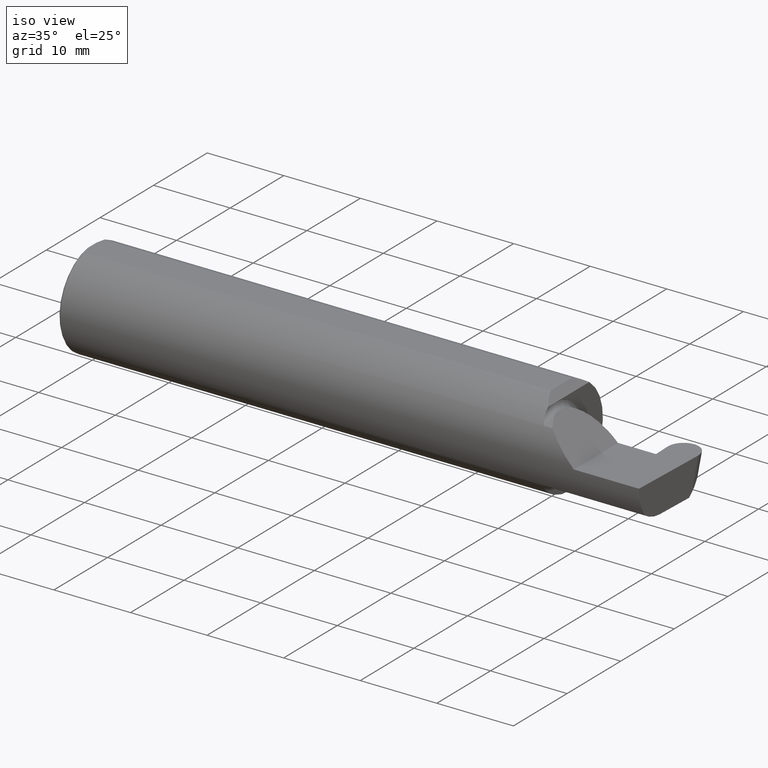
[diagram: clean part render]
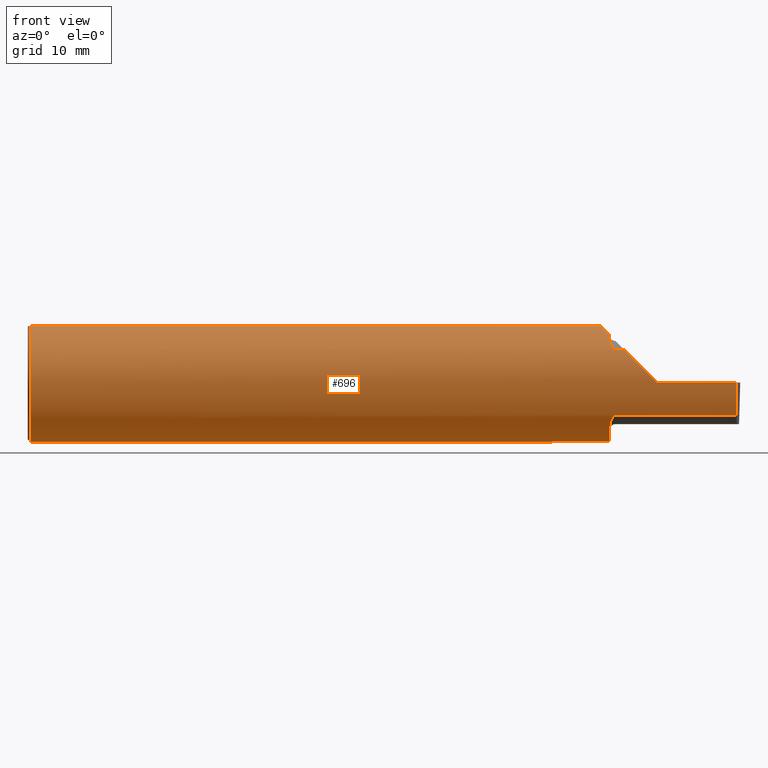
[diagram: tour spotlight — one face highlighted and labeled with its STEP entity id]
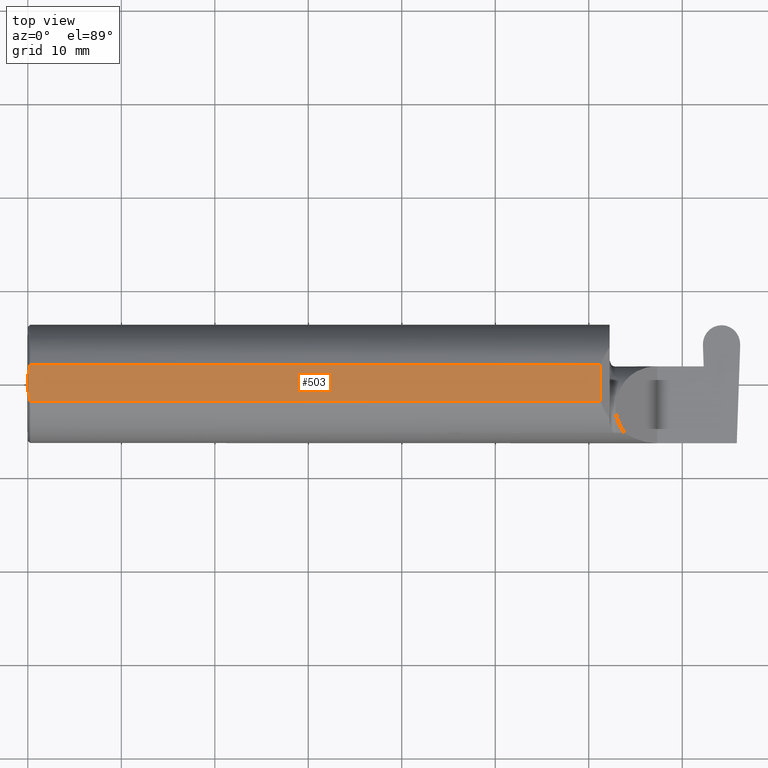
[diagram: tour spotlight — one face highlighted and labeled with its STEP entity id]
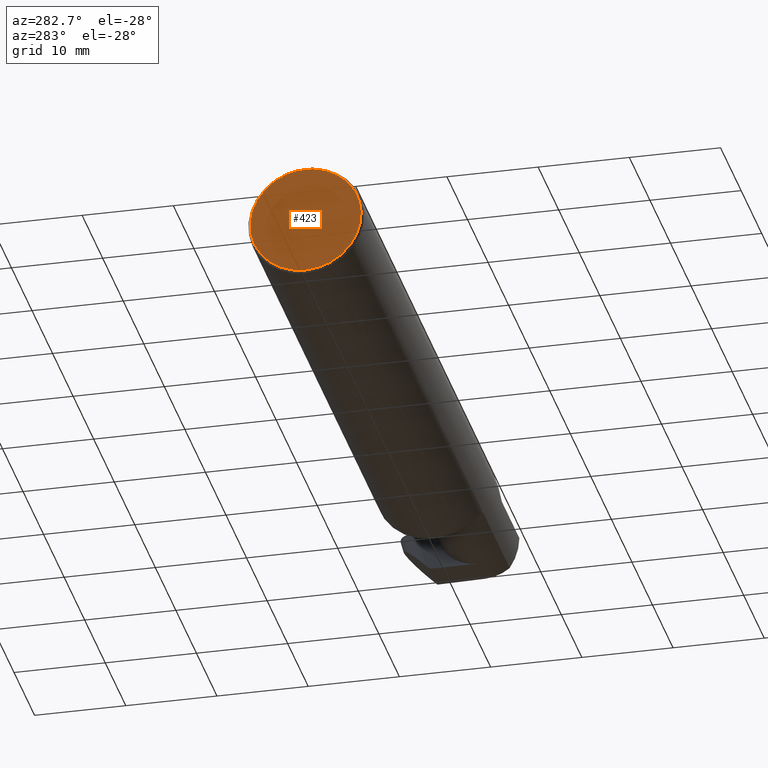
[diagram: tour spotlight — one face highlighted and labeled with its STEP entity id]
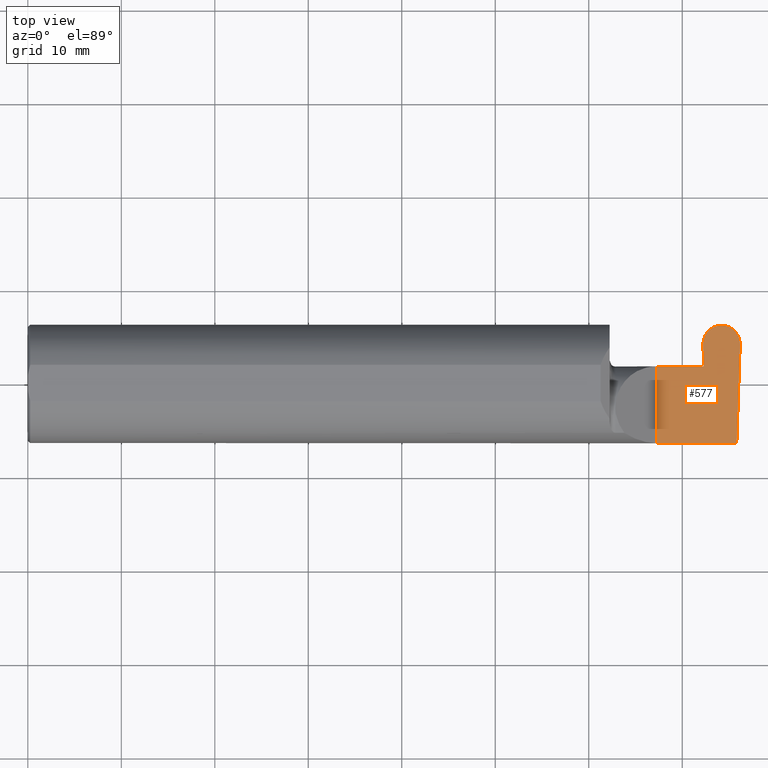
[diagram: tour spotlight — one face highlighted and labeled with its STEP entity id]
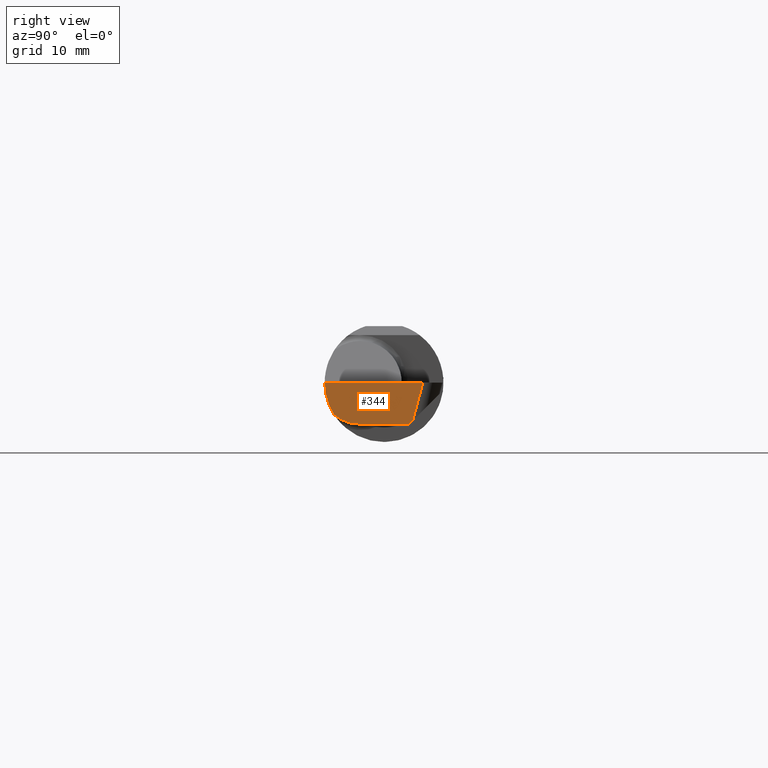
[diagram: tour spotlight — one face highlighted and labeled with its STEP entity id]
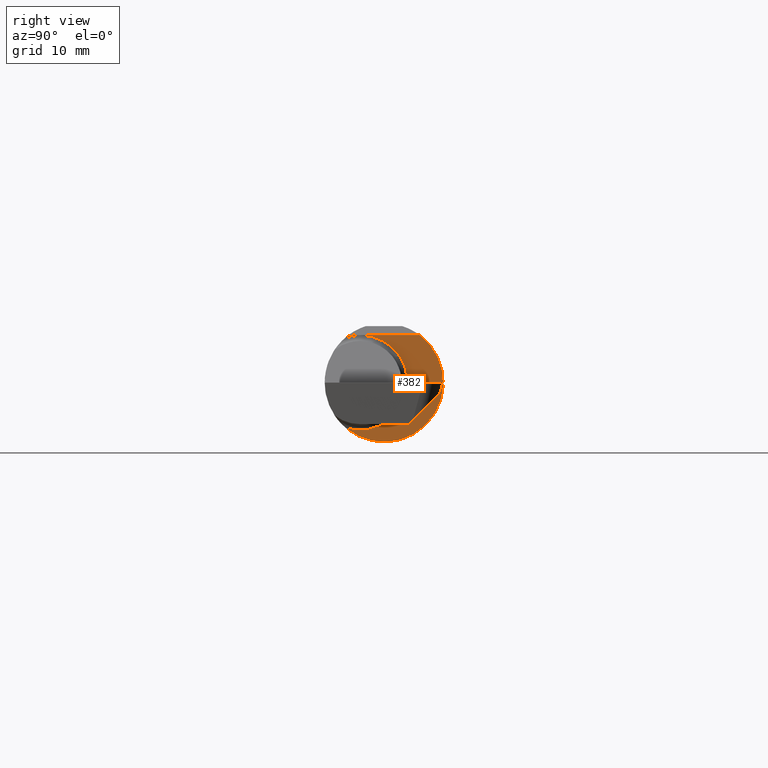
[diagram: tour spotlight — one face highlighted and labeled with its STEP entity id]
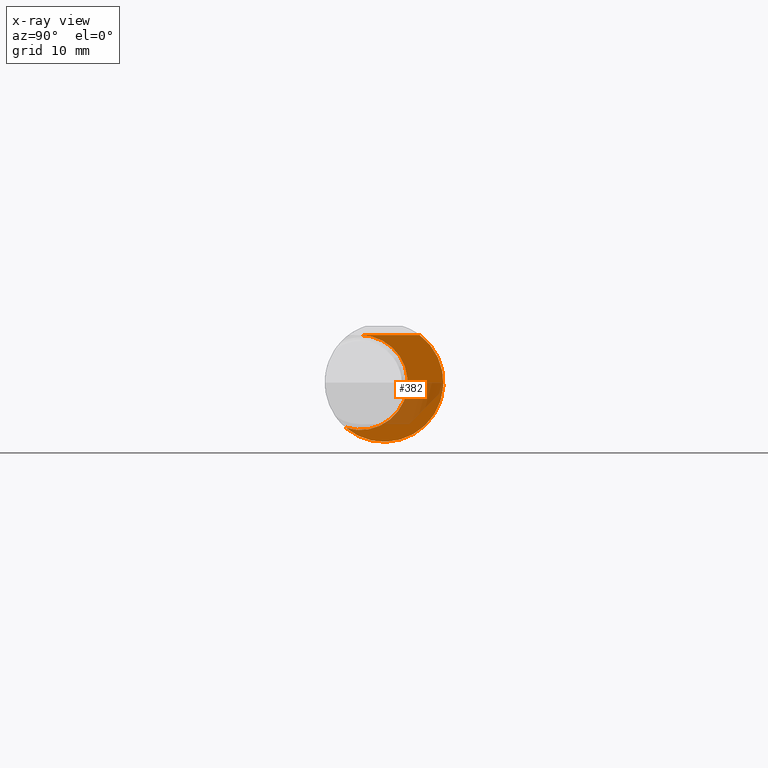
[diagram: x-ray of the same camera — body ghosted, this tour face saturated]
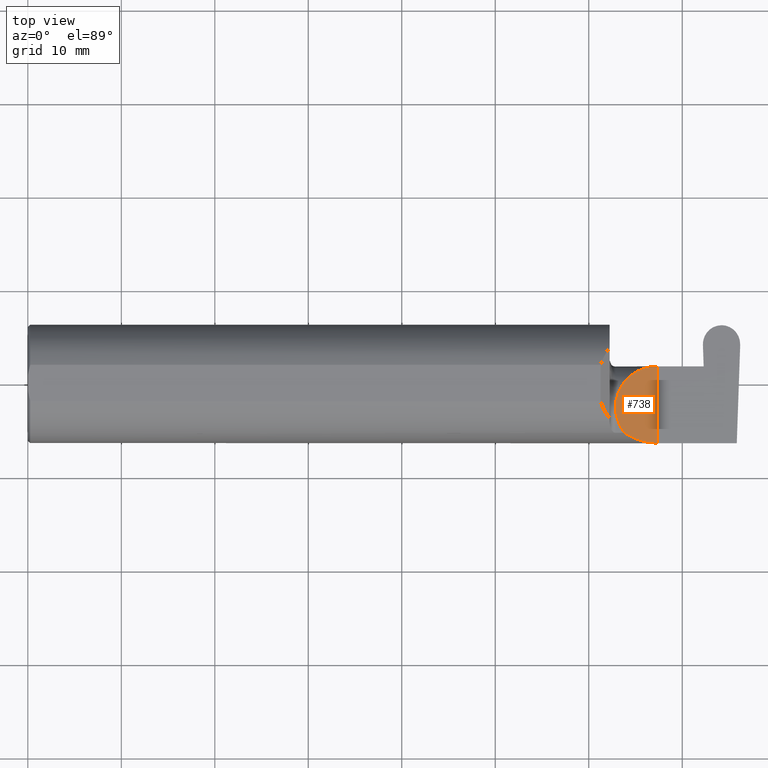
[diagram: tour spotlight — one face highlighted and labeled with its STEP entity id]
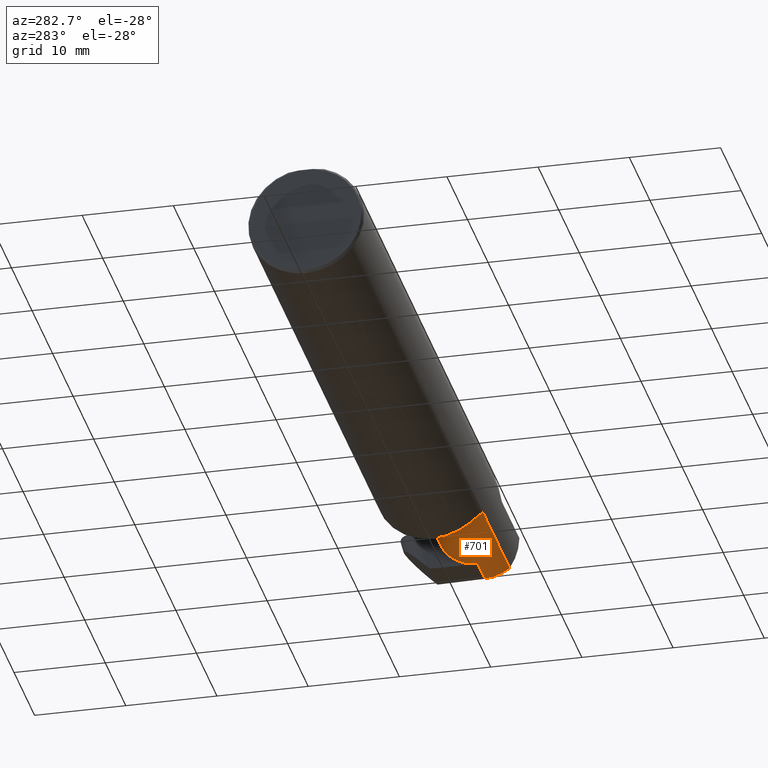
[diagram: tour spotlight — one face highlighted and labeled with its STEP entity id]
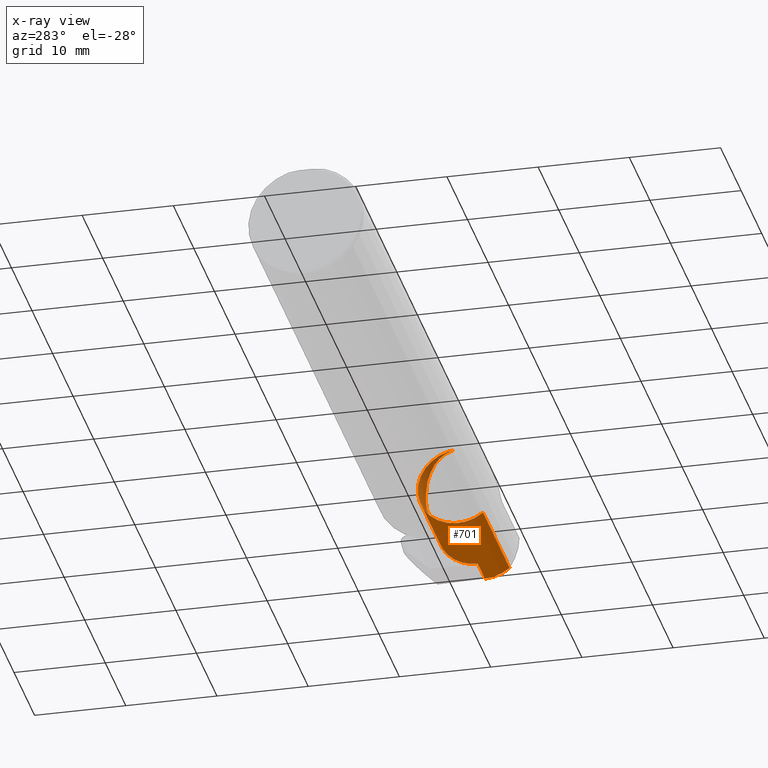
[diagram: x-ray of the same camera — body ghosted, this tour face saturated]
A machine part: a face-by-face anatomy tour. The part has 22 B-rep faces; the first image is the clean iso view, then the 8 largest visible faces are spotlighted one at a time (largest first), each with its STEP entity span.

Face 1 — front view, entity #696. In plain terms, the highlighted cylindrical surface (partial cylindrical patch) has radius 6.3462 mm, axis along (-1, -0, -0).
Definition (entity closure, byte-faithful):
#3 = CARTESIAN_POINT ( 'NONE',  ( 2.658868310000000346, -0.2080850024789289432, -0.1382955322609669135 ) ) ;
#7 = CARTESIAN_POINT ( 'NONE',  ( 2.467647060162629025, -0.2062109266231179627, 0.1410799729252293633 ) ) ;
#11 = CARTESIAN_POINT ( 'NONE',  ( 2.471718393013769610, -0.2077830475237239516, 0.1387513848711940667 ) ) ;
#12 = VERTEX_POINT ( 'NONE', #284 ) ;
#17 = ORIENTED_EDGE ( 'NONE', *, *, #265, .T. ) ;
#22 = CARTESIAN_POINT ( 'NONE',  ( 2.984572483848591862, -0.2498499999999999610, -0.04956584089959716749 ) ) ;
#46 = VERTEX_POINT ( 'NONE', #253 ) ;
#47 = B_SPLINE_CURVE_WITH_KNOTS ( 'NONE', 3,
 ( #496, #544, #310, #500, #190, #443, #183, #552, #597, #242, #538, #483 ),
 .UNSPECIFIED., .F., .F.,
 ( 4, 2, 2, 2, 2, 4 ),
 ( 1.964491429112497443E-07, 0.0001260981470478308596, 0.0002519998449527504378, 0.0005038032407626183255, 0.001007410032382353993, 0.002014623615621827062 ),
 .UNSPECIFIED. ) ;
#48 = DIRECTION ( 'NONE',  ( 0.000000000000000000, 0.000000000000000000, 1.000000000000000000 ) ) ;
#53 = FACE_OUTER_BOUND ( 'NONE', #228, .T. ) ;
#55 = CARTESIAN_POINT ( 'NONE',  ( 2.450000000000000178, -0.1497498664440164717, 0.1999999999999982070 ) ) ;
#70 = ORIENTED_EDGE ( 'NONE', *, *, #172, .F. ) ;
#75 = AXIS2_PLACEMENT_3D ( 'NONE', #388, #272, #758 ) ;
#81 = CARTESIAN_POINT ( 'NONE',  ( 2.450000000000001510, -0.1665641037263006496, 0.1863429692936365567 ) ) ;
#88 = CARTESIAN_POINT ( 'NONE',  ( 2.984481223124517690, -0.2080850024789288322, -0.1382955322609669135 ) ) ;
#98 = DIRECTION ( 'NONE',  ( 1.000000000000000000, 0.000000000000000000, 0.000000000000000000 ) ) ;
#102 = VERTEX_POINT ( 'NONE', #55 ) ;
#111 = ORIENTED_EDGE ( 'NONE', *, *, #635, .T. ) ;
#117 = CARTESIAN_POINT ( 'NONE',  ( 0.009999999999999927350, 0.000000000000000000, -0.2498499999999999888 ) ) ;
#134 = VERTEX_POINT ( 'NONE', #724 ) ;
#138 = AXIS2_PLACEMENT_3D ( 'NONE', #230, #769, #48 ) ;
#149 = CARTESIAN_POINT ( 'NONE',  ( 2.658868310000000346, -0.2080850024789289432, 0.1382955322609669135 ) ) ;
#157 = CARTESIAN_POINT ( 'NONE',  ( 0.000000000000000000, 0.07650098038587520299, 0.2378499999999998671 ) ) ;
#172 = EDGE_CURVE ( 'NONE', #634, #295, #47, .T. ) ;
#183 = CARTESIAN_POINT ( 'NONE',  ( 2.462579853086620307, -0.2024300470081733250, -0.1464774911482688569 ) ) ;
#185 =( BOUNDED_CURVE ( )  B_SPLINE_CURVE ( 3, ( #685, #522, #512, #752 ),
 .UNSPECIFIED., .F., .T. ) 
 B_SPLINE_CURVE_WITH_KNOTS ( ( 4, 4 ),
 ( 4.712388980384689674, 5.298966915116348986 ),
 .UNSPECIFIED. ) 
 CURVE ( )  GEOMETRIC_REPRESENTATION_ITEM ( )  RATIONAL_B_SPLINE_CURVE ( ( 1.000000000000000000, 0.9715321379117536349, 0.9715321379117536349, 1.000000000000000000 ) ) 
 REPRESENTATION_ITEM ( '' )  );
#190 = CARTESIAN_POINT ( 'NONE',  ( 2.467611663768900065, -0.2061921161193828456, -0.1411075319999379185 ) ) ;
#198 = EDGE_CURVE ( 'NONE', #216, #634, #609, .T. ) ;
#199 = CARTESIAN_POINT ( 'NONE',  ( 2.473329956043143874, -0.2080850024798589493, 0.1382955322595678382 ) ) ;
#201 = DIRECTION ( 'NONE',  ( -1.000000000000000000, -0.000000000000000000, -0.000000000000000000 ) ) ;
#208 = CARTESIAN_POINT ( 'NONE',  ( 2.450000000000000178, -0.1616050818046600723, 0.1905487340154983222 ) ) ;
#216 = VERTEX_POINT ( 'NONE', #568 ) ;
#217 = VECTOR ( 'NONE', #516, 39.37007874015748143 ) ;
#219 = EDGE_CURVE ( 'NONE', #755, #12, #413, .T. ) ;
#228 = EDGE_LOOP ( 'NONE', ( #411, #111, #586, #670, #286, #300, #511, #17, #390, #690, #521, #306, #646, #765, #70 ) ) ;
#230 = CARTESIAN_POINT ( 'NONE',  ( 0.000000000000000000, 0.000000000000000000, 0.000000000000000000 ) ) ;
#238 = CYLINDRICAL_SURFACE ( 'NONE', #138, 0.2498499999999999888 ) ;
#242 = CARTESIAN_POINT ( 'NONE',  ( 2.451385488563270876, -0.1808287530430323642, -0.1728790649396289569 ) ) ;
#253 = CARTESIAN_POINT ( 'NONE',  ( 2.650000000000000355, -0.2498499999999999610, 4.286263797015729199E-17 ) ) ;
#256 = CARTESIAN_POINT ( 'NONE',  ( 2.450000000000000178, 0.1497498664440163607, 0.1999999999999983180 ) ) ;
#258 = CARTESIAN_POINT ( 'NONE',  ( 2.451849548162865045, -0.1805300287242671275, 0.1728462070311782561 ) ) ;
#260 = CARTESIAN_POINT ( 'NONE',  ( 4.499279347985562423E-32, -0.2498499999999999610, 3.673940397442054938E-16 ) ) ;
#263 = DIRECTION ( 'NONE',  ( 0.000000000000000000, 0.000000000000000000, -1.000000000000000000 ) ) ;
#264 = CARTESIAN_POINT ( 'NONE',  ( 2.450000000000000178, -0.1497498664440164717, 0.1999999999999982070 ) ) ;
#265 = EDGE_CURVE ( 'NONE', #102, #528, #757, .T. ) ;
#267 = VECTOR ( 'NONE', #201, 39.37007874015748143 ) ;
#269 = CARTESIAN_POINT ( 'NONE',  ( 2.464343523383979662, -0.2041337200786081107, 0.1440846171672515996 ) ) ;
#271 = CARTESIAN_POINT ( 'NONE',  ( 2.985438186182187259, -0.2498499999999999888, 0.000000000000000000 ) ) ;
#272 = DIRECTION ( 'NONE',  ( 1.000000000000000000, 0.000000000000000000, 0.000000000000000000 ) ) ;
#277 = CIRCLE ( 'NONE', #351, 0.2498499999999999888 ) ;
#279 = CARTESIAN_POINT ( 'NONE',  ( 0.009999999999999927350, 0.000000000000000000, 0.000000000000000000 ) ) ;
#284 = CARTESIAN_POINT ( 'NONE',  ( 2.475000000000000089, -0.2080850024789287211, 0.1382955322609670801 ) ) ;
#286 = ORIENTED_EDGE ( 'NONE', *, *, #288, .F. ) ;
#288 = EDGE_CURVE ( 'NONE', #12, #476, #750, .T. ) ;
#293 = LINE ( 'NONE', #783, #707 ) ;
#295 = VERTEX_POINT ( 'NONE', #678 ) ;
#300 = ORIENTED_EDGE ( 'NONE', *, *, #219, .F. ) ;
#306 = ORIENTED_EDGE ( 'NONE', *, *, #649, .F. ) ;
#310 = CARTESIAN_POINT ( 'NONE',  ( 2.471700027347579987, -0.2077785947292765112, -0.1387580622202829461 ) ) ;
#312 = EDGE_CURVE ( 'NONE', #791, #729, #498, .T. ) ;
#313 = CARTESIAN_POINT ( 'NONE',  ( 2.433375685911487452, 0.1275470899297183325, 0.2166243140885106555 ) ) ;
#318 = CARTESIAN_POINT ( 'NONE',  ( 2.452968662030528879, -0.1849684355203375652, 0.1680843977756269758 ) ) ;
#319 =( BOUNDED_CURVE ( )  B_SPLINE_CURVE ( 3, ( #792, #489, #313, #256 ),
 .UNSPECIFIED., .F., .F. ) 
 B_SPLINE_CURVE_WITH_KNOTS ( ( 4, 4 ),
 ( 0.3111857320071445554, 0.6427002007837626651 ),
 .UNSPECIFIED. ) 
 CURVE ( )  GEOMETRIC_REPRESENTATION_ITEM ( )  RATIONAL_B_SPLINE_CURVE ( ( 1.000000000000000000, 0.9908624633578575480, 0.9908624633578575480, 1.000000000000000000 ) ) 
 REPRESENTATION_ITEM ( '' )  );
#325 = CARTESIAN_POINT ( 'NONE',  ( 2.468876997637615478, -0.2068363917296598131, 0.1401586554522231687 ) ) ;
#351 = AXIS2_PLACEMENT_3D ( 'NONE', #450, #383, #620 ) ;
#366 = VERTEX_POINT ( 'NONE', #401 ) ;
#377 = LINE ( 'NONE', #260, #267 ) ;
#378 = VECTOR ( 'NONE', #541, 39.37007874015748143 ) ;
#379 = CARTESIAN_POINT ( 'NONE',  ( 2.412149999999998240, -0.07650098038587530014, 0.2378499999999998948 ) ) ;
#380 = CIRCLE ( 'NONE', #464, 0.2498499999999999888 ) ;
#383 = DIRECTION ( 'NONE',  ( 1.000000000000000000, 3.043218880959242023E-16, 0.000000000000000000 ) ) ;
#388 = CARTESIAN_POINT ( 'NONE',  ( 0.009999999999999927350, 0.000000000000000000, 0.000000000000000000 ) ) ;
#390 = ORIENTED_EDGE ( 'NONE', *, *, #736, .F. ) ;
#401 = CARTESIAN_POINT ( 'NONE',  ( 2.450000000000000178, 0.1497498664440163607, 0.1999999999999983180 ) ) ;
#411 = ORIENTED_EDGE ( 'NONE', *, *, #198, .F. ) ;
#412 = DIRECTION ( 'NONE',  ( 1.000000000000000000, 0.000000000000000000, 0.000000000000000000 ) ) ;
#413 = B_SPLINE_CURVE_WITH_KNOTS ( 'NONE', 3,
 ( #208, #81, #510, #258, #318, #454, #621, #457, #269, #7, #325, #11, #199, #462 ),
 .UNSPECIFIED., .F., .F.,
 ( 4, 2, 2, 2, 2, 2, 4 ),
 ( 0.0003834465838148106917, 0.0008781406165086622822, 0.001372834649202513873, 0.001867528681896363620, 0.002114875698243293481, 0.002238549206416758086, 0.002362222714590223125 ),
 .UNSPECIFIED. ) ;
#443 = CARTESIAN_POINT ( 'NONE',  ( 2.464302603425053029, -0.2041009206016212163, -0.1441313430770041759 ) ) ;
#446 = CARTESIAN_POINT ( 'NONE',  ( 2.412149999999998240, -0.07650098038587530014, 0.2378499999999998948 ) ) ;
#450 = CARTESIAN_POINT ( 'NONE',  ( 2.450000000000000178, 0.000000000000000000, 0.000000000000000000 ) ) ;
#454 = CARTESIAN_POINT ( 'NONE',  ( 2.456159563508734767, -0.1933019864360847884, 0.1584298865564834069 ) ) ;
#456 = CARTESIAN_POINT ( 'NONE',  ( 2.475000000000000089, -0.2080850024789288599, -0.1382955322609670246 ) ) ;
#457 = CARTESIAN_POINT ( 'NONE',  ( 2.462616400345756240, -0.2024684335577101590, 0.1464246884265640591 ) ) ;
#461 = EDGE_CURVE ( 'NONE', #469, #366, #319, .T. ) ;
#462 = CARTESIAN_POINT ( 'NONE',  ( 2.475000000000000089, -0.2080850024789287211, 0.1382955322609670801 ) ) ;
#464 = AXIS2_PLACEMENT_3D ( 'NONE', #474, #705, #651 ) ;
#465 = LINE ( 'NONE', #157, #217 ) ;
#469 = VERTEX_POINT ( 'NONE', #672 ) ;
#474 = CARTESIAN_POINT ( 'NONE',  ( 2.450000000000000178, 0.000000000000000000, 0.000000000000000000 ) ) ;
#476 = VERTEX_POINT ( 'NONE', #744 ) ;
#481 = CARTESIAN_POINT ( 'NONE',  ( 0.009999999999999927350, 0.07650098038587520299, 0.2378499999999998671 ) ) ;
#483 = CARTESIAN_POINT ( 'NONE',  ( 2.450000000000000178, -0.1616050818046600723, -0.1905487340154983222 ) ) ;
#486 = AXIS2_PLACEMENT_3D ( 'NONE', #279, #98, #263 ) ;
#489 = CARTESIAN_POINT ( 'NONE',  ( 2.420642670853159650, 0.1029056323555044561, 0.2293573291468383457 ) ) ;
#496 = CARTESIAN_POINT ( 'NONE',  ( 2.475000000000000089, -0.2080850024789288599, -0.1382955322609670246 ) ) ;
#498 = CIRCLE ( 'NONE', #75, 0.2498499999999999888 ) ;
#500 = CARTESIAN_POINT ( 'NONE',  ( 2.468863362722769406, -0.2068301641248767031, -0.1401678546132364422 ) ) ;
#510 = CARTESIAN_POINT ( 'NONE',  ( 2.450367168219774516, -0.1713400252854600236, 0.1819601557798508629 ) ) ;
#511 = ORIENTED_EDGE ( 'NONE', *, *, #723, .F. ) ;
#512 = CARTESIAN_POINT ( 'NONE',  ( 2.552984868485331571, -0.2355204011147991605, 0.09701513151466779894 ) ) ;
#516 = DIRECTION ( 'NONE',  ( -1.000000000000000000, -0.000000000000000000, -0.000000000000000000 ) ) ;
#521 = ORIENTED_EDGE ( 'NONE', *, *, #312, .T. ) ;
#522 = CARTESIAN_POINT ( 'NONE',  ( 2.600434159100402987, -0.2498499999999999610, 0.04956584089959713973 ) ) ;
#528 = VERTEX_POINT ( 'NONE', #446 ) ;
#538 = CARTESIAN_POINT ( 'NONE',  ( 2.450000000000000178, -0.1716188362992551175, -0.1820560320165483525 ) ) ;
#541 = DIRECTION ( 'NONE',  ( -1.000000000000000000, -3.043218880959242023E-16, -0.000000000000000000 ) ) ;
#544 = CARTESIAN_POINT ( 'NONE',  ( 2.473318040126430084, -0.2080850024789288322, -0.1382955322609669413 ) ) ;
#552 = CARTESIAN_POINT ( 'NONE',  ( 2.458176740666625282, -0.1972027065478070273, -0.1535263573771916690 ) ) ;
#557 = VERTEX_POINT ( 'NONE', #613 ) ;
#558 = EDGE_CURVE ( 'NONE', #557, #46, #377, .T. ) ;
#560 = EDGE_CURVE ( 'NONE', #295, #366, #277, .T. ) ;
#561 = CARTESIAN_POINT ( 'NONE',  ( 2.433375685911487452, -0.1275470899297185268, 0.2166243140885105445 ) ) ;
#568 = CARTESIAN_POINT ( 'NONE',  ( 2.984481223124517690, -0.2080850024789288322, -0.1382955322609669135 ) ) ;
#583 = CARTESIAN_POINT ( 'NONE',  ( 2.984244149176539018, -0.2355204011147991328, -0.09701513151466779894 ) ) ;
#586 = ORIENTED_EDGE ( 'NONE', *, *, #558, .T. ) ;
#587 =( BOUNDED_CURVE ( )  B_SPLINE_CURVE ( 3, ( #88, #583, #22, #271 ),
 .UNSPECIFIED., .F., .T. ) 
 B_SPLINE_CURVE_WITH_KNOTS ( ( 4, 4 ),
 ( 6.160376845738947615, 6.746954780470606039 ),
 .UNSPECIFIED. ) 
 CURVE ( )  GEOMETRIC_REPRESENTATION_ITEM ( )  RATIONAL_B_SPLINE_CURVE ( ( 1.000000000000000000, 0.9715321379117538569, 0.9715321379117538569, 1.000000000000000000 ) ) 
 REPRESENTATION_ITEM ( '' )  );
#597 = CARTESIAN_POINT ( 'NONE',  ( 2.456147634408387681, -0.1932733126899457698, -0.1584637047788201025 ) ) ;
#609 = LINE ( 'NONE', #3, #378 ) ;
#613 = CARTESIAN_POINT ( 'NONE',  ( 2.985438186182187259, -0.2498499999999999888, 0.000000000000000000 ) ) ;
#620 = DIRECTION ( 'NONE',  ( 0.000000000000000000, 1.000000000000000000, 0.000000000000000000 ) ) ;
#621 = CARTESIAN_POINT ( 'NONE',  ( 2.458182335268384477, -0.1972192205116128916, 0.1535061413537211761 ) ) ;
#625 = DIRECTION ( 'NONE',  ( 1.000000000000000000, 3.043218880959242023E-16, 0.000000000000000000 ) ) ;
#634 = VERTEX_POINT ( 'NONE', #456 ) ;
#635 = EDGE_CURVE ( 'NONE', #216, #557, #587, .T. ) ;
#646 = ORIENTED_EDGE ( 'NONE', *, *, #461, .T. ) ;
#649 = EDGE_CURVE ( 'NONE', #469, #729, #465, .T. ) ;
#651 = DIRECTION ( 'NONE',  ( 0.000000000000000000, 1.000000000000000000, 0.000000000000000000 ) ) ;
#664 = VECTOR ( 'NONE', #625, 39.37007874015748143 ) ;
#670 = ORIENTED_EDGE ( 'NONE', *, *, #673, .T. ) ;
#672 = CARTESIAN_POINT ( 'NONE',  ( 2.412149999999998240, 0.07650098038587530014, 0.2378499999999998948 ) ) ;
#673 = EDGE_CURVE ( 'NONE', #46, #476, #185, .T. ) ;
#675 = EDGE_CURVE ( 'NONE', #134, #791, #785, .T. ) ;
#678 = CARTESIAN_POINT ( 'NONE',  ( 2.450000000000000178, -0.1616050818046600723, -0.1905487340154983222 ) ) ;
#685 = CARTESIAN_POINT ( 'NONE',  ( 2.650000000000000355, -0.2498499999999999610, 4.286263797015729199E-17 ) ) ;
#689 = CARTESIAN_POINT ( 'NONE',  ( 2.420642670853159650, -0.1029056323555046087, 0.2293573291468382624 ) ) ;
#690 = ORIENTED_EDGE ( 'NONE', *, *, #675, .T. ) ;
#696 = ADVANCED_FACE ( 'NONE', ( #53 ), #238, .T. ) ;
#705 = DIRECTION ( 'NONE',  ( 1.000000000000000000, 3.043218880959242023E-16, 0.000000000000000000 ) ) ;
#707 = VECTOR ( 'NONE', #412, 39.37007874015748143 ) ;
#712 = CARTESIAN_POINT ( 'NONE',  ( 2.450000000000000178, -0.1616050818046600723, 0.1905487340154983222 ) ) ;
#723 = EDGE_CURVE ( 'NONE', #102, #755, #380, .T. ) ;
#724 = CARTESIAN_POINT ( 'NONE',  ( 0.009999999999999927350, -0.07650098038587520299, 0.2378499999999998671 ) ) ;
#729 = VERTEX_POINT ( 'NONE', #481 ) ;
#736 = EDGE_CURVE ( 'NONE', #134, #528, #293, .T. ) ;
#744 = CARTESIAN_POINT ( 'NONE',  ( 2.511704467739031887, -0.2080850024789288322, 0.1382955322609670246 ) ) ;
#750 = LINE ( 'NONE', #149, #664 ) ;
#752 = CARTESIAN_POINT ( 'NONE',  ( 2.511704467739031887, -0.2080850024789288322, 0.1382955322609670246 ) ) ;
#755 = VERTEX_POINT ( 'NONE', #712 ) ;
#757 =( BOUNDED_CURVE ( )  B_SPLINE_CURVE ( 3, ( #264, #561, #689, #379 ),
 .UNSPECIFIED., .F., .F. ) 
 B_SPLINE_CURVE_WITH_KNOTS ( ( 4, 4 ),
 ( 5.640485106395822790, 5.971999575172441510 ),
 .UNSPECIFIED. ) 
 CURVE ( )  GEOMETRIC_REPRESENTATION_ITEM ( )  RATIONAL_B_SPLINE_CURVE ( ( 1.000000000000000000, 0.9908624633578575480, 0.9908624633578575480, 1.000000000000000000 ) ) 
 REPRESENTATION_ITEM ( '' )  );
#758 = DIRECTION ( 'NONE',  ( 0.000000000000000000, 0.000000000000000000, -1.000000000000000000 ) ) ;
#765 = ORIENTED_EDGE ( 'NONE', *, *, #560, .F. ) ;
#769 = DIRECTION ( 'NONE',  ( -1.000000000000000000, -0.000000000000000000, -0.000000000000000000 ) ) ;
#783 = CARTESIAN_POINT ( 'NONE',  ( 0.000000000000000000, -0.07650098038587520299, 0.2378499999999998671 ) ) ;
#785 = CIRCLE ( 'NONE', #486, 0.2498499999999999888 ) ;
#791 = VERTEX_POINT ( 'NONE', #117 ) ;
#792 = CARTESIAN_POINT ( 'NONE',  ( 2.412149999999998240, 0.07650098038587530014, 0.2378499999999998948 ) ) ;

Face 2 — top view, entity #503. In plain terms, the highlighted planar face has unit normal (0, 0, 1).
Definition (entity closure, byte-faithful):
#32 = VECTOR ( 'NONE', #141, 39.37007874015748143 ) ;
#52 = EDGE_CURVE ( 'NONE', #528, #469, #67, .T. ) ;
#58 = CARTESIAN_POINT ( 'NONE',  ( 0.005466242398876407227, 0.06169385855649833772, 0.2378499999999998671 ) ) ;
#66 = CARTESIAN_POINT ( 'NONE',  ( 3.501298404146671484, 0.2498499999999998500, 0.2378499999999998671 ) ) ;
#67 = LINE ( 'NONE', #365, #719 ) ;
#69 = B_SPLINE_CURVE_WITH_KNOTS ( 'NONE', 3,
 ( #133, #793, #58, #727 ),
 .UNSPECIFIED., .F., .F.,
 ( 4, 4 ),
 ( 0.01593449416844765903, 0.01712021724825598876 ),
 .UNSPECIFIED. ) ;
#80 = DIRECTION ( 'NONE',  ( 0.000000000000000000, 0.000000000000000000, 1.000000000000000000 ) ) ;
#92 = EDGE_CURVE ( 'NONE', #570, #729, #69, .T. ) ;
#108 = CARTESIAN_POINT ( 'NONE',  ( 0.009999999999999927350, -0.07650098038587520299, 0.2378499999999998671 ) ) ;
#133 = CARTESIAN_POINT ( 'NONE',  ( 0.000000000000000000, 0.03090954545120574992, 0.2378499999999998671 ) ) ;
#134 = VERTEX_POINT ( 'NONE', #724 ) ;
#141 = DIRECTION ( 'NONE',  ( -0.000000000000000000, 1.000000000000000000, -0.000000000000000000 ) ) ;
#157 = CARTESIAN_POINT ( 'NONE',  ( 0.000000000000000000, 0.07650098038587520299, 0.2378499999999998671 ) ) ;
#165 = CARTESIAN_POINT ( 'NONE',  ( 0.005459900170181729989, -0.06167314502012864741, 0.2378499999999998671 ) ) ;
#166 = AXIS2_PLACEMENT_3D ( 'NONE', #66, #80, #197 ) ;
#171 = CARTESIAN_POINT ( 'NONE',  ( 0.000000000000000000, -0.03090954545120560767, 0.2378499999999998671 ) ) ;
#197 = DIRECTION ( 'NONE',  ( 1.000000000000000000, 0.000000000000000000, -0.000000000000000000 ) ) ;
#210 = EDGE_CURVE ( 'NONE', #222, #570, #329, .T. ) ;
#217 = VECTOR ( 'NONE', #516, 39.37007874015748143 ) ;
#222 = VERTEX_POINT ( 'NONE', #322 ) ;
#293 = LINE ( 'NONE', #783, #707 ) ;
#322 = CARTESIAN_POINT ( 'NONE',  ( 0.000000000000000000, -0.03090954545120560767, 0.2378499999999998671 ) ) ;
#329 = LINE ( 'NONE', #517, #32 ) ;
#333 = ORIENTED_EDGE ( 'NONE', *, *, #210, .F. ) ;
#365 = CARTESIAN_POINT ( 'NONE',  ( 2.412149999999998240, -0.2500000000000000555, 0.2378499999999998948 ) ) ;
#367 = FACE_OUTER_BOUND ( 'NONE', #562, .T. ) ;
#372 = ORIENTED_EDGE ( 'NONE', *, *, #761, .F. ) ;
#381 = ORIENTED_EDGE ( 'NONE', *, *, #736, .T. ) ;
#399 = ORIENTED_EDGE ( 'NONE', *, *, #92, .F. ) ;
#412 = DIRECTION ( 'NONE',  ( 1.000000000000000000, 0.000000000000000000, 0.000000000000000000 ) ) ;
#445 = ORIENTED_EDGE ( 'NONE', *, *, #649, .T. ) ;
#446 = CARTESIAN_POINT ( 'NONE',  ( 2.412149999999998240, -0.07650098038587530014, 0.2378499999999998948 ) ) ;
#465 = LINE ( 'NONE', #157, #217 ) ;
#466 = B_SPLINE_CURVE_WITH_KNOTS ( 'NONE', 3,
 ( #108, #165, #659, #171 ),
 .UNSPECIFIED., .F., .F.,
 ( 4, 4 ),
 ( 0.01317593029100226111, 0.01435802289191457325 ),
 .UNSPECIFIED. ) ;
#469 = VERTEX_POINT ( 'NONE', #672 ) ;
#481 = CARTESIAN_POINT ( 'NONE',  ( 0.009999999999999927350, 0.07650098038587520299, 0.2378499999999998671 ) ) ;
#502 = PLANE ( 'NONE',  #166 ) ;
#503 = ADVANCED_FACE ( 'NONE', ( #367 ), #502, .T. ) ;
#516 = DIRECTION ( 'NONE',  ( -1.000000000000000000, -0.000000000000000000, -0.000000000000000000 ) ) ;
#517 = CARTESIAN_POINT ( 'NONE',  ( 0.000000000000000000, 0.2498499999999998500, 0.2378499999999998671 ) ) ;
#528 = VERTEX_POINT ( 'NONE', #446 ) ;
#562 = EDGE_LOOP ( 'NONE', ( #381, #751, #445, #399, #333, #372 ) ) ;
#570 = VERTEX_POINT ( 'NONE', #571 ) ;
#571 = CARTESIAN_POINT ( 'NONE',  ( 0.000000000000000000, 0.03090954545120574992, 0.2378499999999998671 ) ) ;
#606 = DIRECTION ( 'NONE',  ( 0.000000000000000000, 1.000000000000000000, 0.000000000000000000 ) ) ;
#649 = EDGE_CURVE ( 'NONE', #469, #729, #465, .T. ) ;
#659 = CARTESIAN_POINT ( 'NONE',  ( 0.001983148254845710189, -0.04629825796642594860, 0.2378499999999998671 ) ) ;
#672 = CARTESIAN_POINT ( 'NONE',  ( 2.412149999999998240, 0.07650098038587530014, 0.2378499999999998948 ) ) ;
#707 = VECTOR ( 'NONE', #412, 39.37007874015748143 ) ;
#719 = VECTOR ( 'NONE', #606, 39.37007874015748143 ) ;
#724 = CARTESIAN_POINT ( 'NONE',  ( 0.009999999999999927350, -0.07650098038587520299, 0.2378499999999998671 ) ) ;
#727 = CARTESIAN_POINT ( 'NONE',  ( 0.009999999999999927350, 0.07650098038587520299, 0.2378499999999998671 ) ) ;
#729 = VERTEX_POINT ( 'NONE', #481 ) ;
#736 = EDGE_CURVE ( 'NONE', #134, #528, #293, .T. ) ;
#751 = ORIENTED_EDGE ( 'NONE', *, *, #52, .T. ) ;
#761 = EDGE_CURVE ( 'NONE', #134, #222, #466, .T. ) ;
#783 = CARTESIAN_POINT ( 'NONE',  ( 0.000000000000000000, -0.07650098038587520299, 0.2378499999999998671 ) ) ;
#793 = CARTESIAN_POINT ( 'NONE',  ( 0.002005502345409073024, 0.04647171987093980799, 0.2378499999999998671 ) ) ;

Face 3 — auxiliary view, entity #423. In plain terms, the highlighted planar face has unit normal (1, 0, 0).
Definition (entity closure, byte-faithful):
#23 = CARTESIAN_POINT ( 'NONE',  ( 0.000000000000000000, 0.000000000000000000, 0.000000000000000000 ) ) ;
#30 = AXIS2_PLACEMENT_3D ( 'NONE', #23, #136, #447 ) ;
#32 = VECTOR ( 'NONE', #141, 39.37007874015748143 ) ;
#33 = CIRCLE ( 'NONE', #642, 0.2398500000000001742 ) ;
#34 = DIRECTION ( 'NONE',  ( 1.000000000000000000, 0.000000000000000000, 0.000000000000000000 ) ) ;
#104 = DIRECTION ( 'NONE',  ( -1.000000000000000000, -0.000000000000000000, -0.000000000000000000 ) ) ;
#136 = DIRECTION ( 'NONE',  ( -1.000000000000000000, -0.000000000000000000, -0.000000000000000000 ) ) ;
#141 = DIRECTION ( 'NONE',  ( -0.000000000000000000, 1.000000000000000000, -0.000000000000000000 ) ) ;
#161 = DIRECTION ( 'NONE',  ( 0.000000000000000000, 0.000000000000000000, -1.000000000000000000 ) ) ;
#205 = ORIENTED_EDGE ( 'NONE', *, *, #255, .T. ) ;
#210 = EDGE_CURVE ( 'NONE', #222, #570, #329, .T. ) ;
#222 = VERTEX_POINT ( 'NONE', #322 ) ;
#247 = VERTEX_POINT ( 'NONE', #384 ) ;
#255 = EDGE_CURVE ( 'NONE', #570, #247, #362, .T. ) ;
#280 = DIRECTION ( 'NONE',  ( 0.000000000000000000, 0.000000000000000000, -1.000000000000000000 ) ) ;
#316 = ORIENTED_EDGE ( 'NONE', *, *, #398, .T. ) ;
#322 = CARTESIAN_POINT ( 'NONE',  ( 0.000000000000000000, -0.03090954545120560767, 0.2378499999999998671 ) ) ;
#329 = LINE ( 'NONE', #517, #32 ) ;
#337 = FACE_OUTER_BOUND ( 'NONE', #414, .T. ) ;
#345 = CARTESIAN_POINT ( 'NONE',  ( 0.000000000000000000, 0.000000000000000000, 0.000000000000000000 ) ) ;
#362 = CIRCLE ( 'NONE', #30, 0.2398500000000001742 ) ;
#384 = CARTESIAN_POINT ( 'NONE',  ( 0.000000000000000000, 0.000000000000000000, -0.2398500000000001742 ) ) ;
#398 = EDGE_CURVE ( 'NONE', #247, #222, #33, .T. ) ;
#414 = EDGE_LOOP ( 'NONE', ( #608, #205, #316 ) ) ;
#423 = ADVANCED_FACE ( 'NONE', ( #337 ), #579, .F. ) ;
#447 = DIRECTION ( 'NONE',  ( 0.000000000000000000, 0.000000000000000000, -1.000000000000000000 ) ) ;
#517 = CARTESIAN_POINT ( 'NONE',  ( 0.000000000000000000, 0.2498499999999998500, 0.2378499999999998671 ) ) ;
#570 = VERTEX_POINT ( 'NONE', #571 ) ;
#571 = CARTESIAN_POINT ( 'NONE',  ( 0.000000000000000000, 0.03090954545120574992, 0.2378499999999998671 ) ) ;
#579 = PLANE ( 'NONE',  #747 ) ;
#608 = ORIENTED_EDGE ( 'NONE', *, *, #210, .T. ) ;
#642 = AXIS2_PLACEMENT_3D ( 'NONE', #645, #104, #161 ) ;
#645 = CARTESIAN_POINT ( 'NONE',  ( 0.000000000000000000, 0.000000000000000000, 0.000000000000000000 ) ) ;
#747 = AXIS2_PLACEMENT_3D ( 'NONE', #345, #34, #280 ) ;

Face 4 — top view, entity #577. In plain terms, the highlighted planar face has unit normal (-0, 0, -1).
Definition (entity closure, byte-faithful):
#27 = CARTESIAN_POINT ( 'NONE',  ( 3.001573456183362243, 0.2122036785419297300, -1.281880052625240159E-18 ) ) ;
#41 = CARTESIAN_POINT ( 'NONE',  ( 2.450000000000000178, 0.07414999999999988267, 6.735557395310436353E-17 ) ) ;
#46 = VERTEX_POINT ( 'NONE', #253 ) ;
#72 = LINE ( 'NONE', #315, #734 ) ;
#87 = EDGE_CURVE ( 'NONE', #167, #524, #601, .T. ) ;
#91 = ORIENTED_EDGE ( 'NONE', *, *, #600, .F. ) ;
#95 = CARTESIAN_POINT ( 'NONE',  ( 2.650000000000000355, 0.07414999999999984104, 4.286263797015729199E-17 ) ) ;
#99 = VECTOR ( 'NONE', #283, 39.37007874015748143 ) ;
#116 = ORIENTED_EDGE ( 'NONE', *, *, #762, .F. ) ;
#125 = AXIS2_PLACEMENT_3D ( 'NONE', #628, #640, #519 ) ;
#128 = CARTESIAN_POINT ( 'NONE',  ( 2.845984104502489398, 0.07414999999999977165, 0.000000000000000000 ) ) ;
#132 =( BOUNDED_CURVE ( )  B_SPLINE_CURVE ( 3, ( #442, #317, #248, #737 ),
 .UNSPECIFIED., .F., .T. ) 
 B_SPLINE_CURVE_WITH_KNOTS ( ( 4, 4 ),
 ( 3.045231736429742764, 4.645220385064936508 ),
 .UNSPECIFIED. ) 
 CURVE ( )  GEOMETRIC_REPRESENTATION_ITEM ( )  RATIONAL_B_SPLINE_CURVE ( ( 1.000000000000000000, 0.7978071872141905274, 0.7978071872141905274, 1.000000000000000000 ) ) 
 REPRESENTATION_ITEM ( '' )  );
#140 = CARTESIAN_POINT ( 'NONE',  ( 2.921940976684220370, 0.2471499999999999808, 0.000000000000000000 ) ) ;
#143 = CARTESIAN_POINT ( 'NONE',  ( 2.842863629214074095, 0.1635087207221616601, 0.000000000000000000 ) ) ;
#146 = CARTESIAN_POINT ( 'NONE',  ( 2.650000000000000355, -0.2500000000000000555, 4.286263797015729199E-17 ) ) ;
#147 = EDGE_CURVE ( 'NONE', #546, #564, #660, .T. ) ;
#154 = CARTESIAN_POINT ( 'NONE',  ( 2.969012533631873119, 0.2471500000000001473, 2.705682905371333071E-18 ) ) ;
#167 = VERTEX_POINT ( 'NONE', #294 ) ;
#187 = DIRECTION ( 'NONE',  ( 1.000000000000000000, -0.000000000000000000, -0.000000000000000000 ) ) ;
#201 = DIRECTION ( 'NONE',  ( -1.000000000000000000, -0.000000000000000000, -0.000000000000000000 ) ) ;
#207 = CARTESIAN_POINT ( 'NONE',  ( 2.921940976684220370, 0.2471499999999999808, 0.000000000000000000 ) ) ;
#209 = VERTEX_POINT ( 'NONE', #784 ) ;
#213 = ORIENTED_EDGE ( 'NONE', *, *, #612, .T. ) ;
#248 = CARTESIAN_POINT ( 'NONE',  ( 2.841163163816639692, 0.2122036785419297300, 1.942305813555199541E-17 ) ) ;
#253 = CARTESIAN_POINT ( 'NONE',  ( 2.650000000000000355, -0.2498499999999999610, 4.286263797015729199E-17 ) ) ;
#260 = CARTESIAN_POINT ( 'NONE',  ( 4.499279347985562423E-32, -0.2498499999999999610, 3.673940397442054938E-16 ) ) ;
#267 = VECTOR ( 'NONE', #201, 39.37007874015748143 ) ;
#274 = PLANE ( 'NONE',  #125 ) ;
#275 = LINE ( 'NONE', #41, #99 ) ;
#283 = DIRECTION ( 'NONE',  ( 1.000000000000000000, 3.043218880959242023E-16, 0.000000000000000000 ) ) ;
#294 = CARTESIAN_POINT ( 'NONE',  ( 2.920795643315781120, 0.2471499999999999808, 0.000000000000000000 ) ) ;
#314 = VECTOR ( 'NONE', #438, 39.37007874015748143 ) ;
#315 = CARTESIAN_POINT ( 'NONE',  ( 2.999952099699010333, 0.1657741035941333874, 0.000000000000000000 ) ) ;
#317 = CARTESIAN_POINT ( 'NONE',  ( 2.873724086368128372, 0.2471500000000001473, 1.543549517755541833E-17 ) ) ;
#320 = ORIENTED_EDGE ( 'NONE', *, *, #87, .F. ) ;
#321 = CARTESIAN_POINT ( 'NONE',  ( 2.845984104502489398, 0.07414999999999977165, 0.000000000000000000 ) ) ;
#330 = ORIENTED_EDGE ( 'NONE', *, *, #558, .F. ) ;
#335 = EDGE_CURVE ( 'NONE', #209, #557, #72, .T. ) ;
#341 = CARTESIAN_POINT ( 'NONE',  ( 2.999872990785927396, 0.1635087207221616878, 0.000000000000000000 ) ) ;
#352 = ORIENTED_EDGE ( 'NONE', *, *, #147, .F. ) ;
#355 = DIRECTION ( 'NONE',  ( -0.03489949670249602176, 0.9993908270190959842, -0.000000000000000000 ) ) ;
#370 = EDGE_CURVE ( 'NONE', #376, #546, #275, .T. ) ;
#376 = VERTEX_POINT ( 'NONE', #95 ) ;
#377 = LINE ( 'NONE', #260, #267 ) ;
#415 = LINE ( 'NONE', #655, #748 ) ;
#433 = VECTOR ( 'NONE', #187, 39.37007874015748143 ) ;
#438 = DIRECTION ( 'NONE',  ( 1.000000000000000000, -0.000000000000000000, -0.000000000000000000 ) ) ;
#442 = CARTESIAN_POINT ( 'NONE',  ( 2.920795643315781120, 0.2471499999999999808, 0.000000000000000000 ) ) ;
#482 = EDGE_CURVE ( 'NONE', #167, #687, #132, .T. ) ;
#497 = ORIENTED_EDGE ( 'NONE', *, *, #482, .T. ) ;
#519 = DIRECTION ( 'NONE',  ( -1.000000000000000000, 0.000000000000000000, 1.224646799147351975E-16 ) ) ;
#524 = VERTEX_POINT ( 'NONE', #140 ) ;
#527 = ORIENTED_EDGE ( 'NONE', *, *, #335, .F. ) ;
#546 = VERTEX_POINT ( 'NONE', #730 ) ;
#556 = DIRECTION ( 'NONE',  ( -0.03489949670249561930, -0.9993908270190959842, 0.000000000000000000 ) ) ;
#557 = VERTEX_POINT ( 'NONE', #613 ) ;
#558 = EDGE_CURVE ( 'NONE', #557, #46, #377, .T. ) ;
#564 = VERTEX_POINT ( 'NONE', #321 ) ;
#574 = DIRECTION ( 'NONE',  ( -0.000000000000000000, 1.000000000000000000, -0.000000000000000000 ) ) ;
#577 = ADVANCED_FACE ( 'NONE', ( #688 ), #274, .F. ) ;
#582 = EDGE_LOOP ( 'NONE', ( #320, #497, #116, #352, #603, #91, #330, #527, #213 ) ) ;
#600 = EDGE_CURVE ( 'NONE', #46, #376, #749, .T. ) ;
#601 = LINE ( 'NONE', #656, #314 ) ;
#603 = ORIENTED_EDGE ( 'NONE', *, *, #370, .F. ) ;
#612 = EDGE_CURVE ( 'NONE', #209, #524, #692, .T. ) ;
#613 = CARTESIAN_POINT ( 'NONE',  ( 2.985438186182187259, -0.2498499999999999888, 0.000000000000000000 ) ) ;
#628 = CARTESIAN_POINT ( 'NONE',  ( 3.000000000000000444, -0.2500000000000000555, 0.000000000000000000 ) ) ;
#640 = DIRECTION ( 'NONE',  ( -1.224646799147351975E-16, 0.000000000000000000, -1.000000000000000000 ) ) ;
#655 = CARTESIAN_POINT ( 'NONE',  ( 2.842784520300991158, 0.1657741035941333874, 0.000000000000000000 ) ) ;
#656 = CARTESIAN_POINT ( 'NONE',  ( -3.937007874019685528E-05, 0.2471499999999999808, 0.000000000000000000 ) ) ;
#660 = LINE ( 'NONE', #128, #433 ) ;
#687 = VERTEX_POINT ( 'NONE', #143 ) ;
#688 = FACE_OUTER_BOUND ( 'NONE', #582, .T. ) ;
#692 =( BOUNDED_CURVE ( )  B_SPLINE_CURVE ( 3, ( #341, #27, #154, #207 ),
 .UNSPECIFIED., .F., .F. ) 
 B_SPLINE_CURVE_WITH_KNOTS ( ( 4, 4 ),
 ( 1.637964922114649058, 3.237953570749842136 ),
 .UNSPECIFIED. ) 
 CURVE ( )  GEOMETRIC_REPRESENTATION_ITEM ( )  RATIONAL_B_SPLINE_CURVE ( ( 1.000000000000000000, 0.7978071872141905274, 0.7978071872141905274, 1.000000000000000000 ) ) 
 REPRESENTATION_ITEM ( '' )  );
#693 = VECTOR ( 'NONE', #574, 39.37007874015748143 ) ;
#730 = CARTESIAN_POINT ( 'NONE',  ( 2.834942811380418259, 0.07414999999999977165, 0.000000000000000000 ) ) ;
#734 = VECTOR ( 'NONE', #556, 39.37007874015748854 ) ;
#737 = CARTESIAN_POINT ( 'NONE',  ( 2.842863629214074095, 0.1635087207221616601, 0.000000000000000000 ) ) ;
#748 = VECTOR ( 'NONE', #355, 39.37007874015748143 ) ;
#749 = LINE ( 'NONE', #146, #693 ) ;
#762 = EDGE_CURVE ( 'NONE', #564, #687, #415, .T. ) ;
#784 = CARTESIAN_POINT ( 'NONE',  ( 2.999872990785927396, 0.1635087207221616878, 0.000000000000000000 ) ) ;

Face 5 — right view, entity #344. In plain terms, the highlighted planar face has unit normal (-0.9992, 0.0349, 0.0175).
Definition (entity closure, byte-faithful):
#5 = VECTOR ( 'NONE', #324, 39.37007874015748854 ) ;
#22 = CARTESIAN_POINT ( 'NONE',  ( 2.984572483848591862, -0.2498499999999999610, -0.04956584089959716749 ) ) ;
#72 = LINE ( 'NONE', #315, #734 ) ;
#78 = FACE_OUTER_BOUND ( 'NONE', #127, .T. ) ;
#84 = LINE ( 'NONE', #396, #5 ) ;
#88 = CARTESIAN_POINT ( 'NONE',  ( 2.984481223124517690, -0.2080850024789288322, -0.1382955322609669135 ) ) ;
#94 = ORIENTED_EDGE ( 'NONE', *, *, #624, .F. ) ;
#127 = EDGE_LOOP ( 'NONE', ( #94, #327, #676, #505, #493, #658 ) ) ;
#145 = VERTEX_POINT ( 'NONE', #298 ) ;
#152 = VECTOR ( 'NONE', #652, 39.37007874015748854 ) ;
#173 = LINE ( 'NONE', #605, #178 ) ;
#178 = VECTOR ( 'NONE', #667, 39.37007874015748143 ) ;
#209 = VERTEX_POINT ( 'NONE', #784 ) ;
#216 = VERTEX_POINT ( 'NONE', #568 ) ;
#220 = CARTESIAN_POINT ( 'NONE',  ( 2.985143277913549831, -0.1771157075472505615, -0.1623092683844333528 ) ) ;
#226 = AXIS2_PLACEMENT_3D ( 'NONE', #227, #478, #763 ) ;
#227 = CARTESIAN_POINT ( 'NONE',  ( 2.999952099699010333, 0.1657741035941333874, 0.000000000000000000 ) ) ;
#271 = CARTESIAN_POINT ( 'NONE',  ( 2.985438186182187259, -0.2498499999999999888, 0.000000000000000000 ) ) ;
#298 = CARTESIAN_POINT ( 'NONE',  ( 2.995574489715794542, 0.1205682248496117992, -0.1602561122985578235 ) ) ;
#311 = VERTEX_POINT ( 'NONE', #572 ) ;
#315 = CARTESIAN_POINT ( 'NONE',  ( 2.999952099699010333, 0.1657741035941333874, 0.000000000000000000 ) ) ;
#324 = DIRECTION ( 'NONE',  ( -0.03701744261649914797, -0.7066221440565398915, -0.7066221440565477740 ) ) ;
#327 = ORIENTED_EDGE ( 'NONE', *, *, #436, .T. ) ;
#335 = EDGE_CURVE ( 'NONE', #209, #557, #72, .T. ) ;
#336 = CARTESIAN_POINT ( 'NONE',  ( 2.984481223124517690, -0.2080850024789288322, -0.1382955322609669135 ) ) ;
#344 = ADVANCED_FACE ( 'NONE', ( #78 ), #745, .F. ) ;
#396 = CARTESIAN_POINT ( 'NONE',  ( 2.997446899850802815, 0.1563104687928190129, -0.1245138683553501935 ) ) ;
#403 = CARTESIAN_POINT ( 'NONE',  ( 2.987584882537838826, -0.1008499999999992597, -0.1750000000000000722 ) ) ;
#436 = EDGE_CURVE ( 'NONE', #145, #209, #588, .T. ) ;
#448 = EDGE_CURVE ( 'NONE', #472, #311, #173, .T. ) ;
#472 = VERTEX_POINT ( 'NONE', #547 ) ;
#478 = DIRECTION ( 'NONE',  ( -0.9992386149554828290, 0.03489418134010831979, 0.01745240643728358798 ) ) ;
#493 = ORIENTED_EDGE ( 'NONE', *, *, #648, .T. ) ;
#505 = ORIENTED_EDGE ( 'NONE', *, *, #635, .F. ) ;
#534 = CARTESIAN_POINT ( 'NONE',  ( 2.999888224582237584, 0.1636609009256532465, 0.0005679442513367019075 ) ) ;
#547 = CARTESIAN_POINT ( 'NONE',  ( 2.994802109425249714, 0.1058243371481696615, -0.1750000000000001277 ) ) ;
#556 = DIRECTION ( 'NONE',  ( -0.03489949670249561930, -0.9993908270190959842, 0.000000000000000000 ) ) ;
#557 = VERTEX_POINT ( 'NONE', #613 ) ;
#568 = CARTESIAN_POINT ( 'NONE',  ( 2.984481223124517690, -0.2080850024789288322, -0.1382955322609669135 ) ) ;
#572 = CARTESIAN_POINT ( 'NONE',  ( 2.987584882537838826, -0.1008499999999992597, -0.1750000000000000722 ) ) ;
#583 = CARTESIAN_POINT ( 'NONE',  ( 2.984244149176539018, -0.2355204011147991328, -0.09701513151466779894 ) ) ;
#587 =( BOUNDED_CURVE ( )  B_SPLINE_CURVE ( 3, ( #88, #583, #22, #271 ),
 .UNSPECIFIED., .F., .T. ) 
 B_SPLINE_CURVE_WITH_KNOTS ( ( 4, 4 ),
 ( 6.160376845738947615, 6.746954780470606039 ),
 .UNSPECIFIED. ) 
 CURVE ( )  GEOMETRIC_REPRESENTATION_ITEM ( )  RATIONAL_B_SPLINE_CURVE ( ( 1.000000000000000000, 0.9715321379117538569, 0.9715321379117538569, 1.000000000000000000 ) ) 
 REPRESENTATION_ITEM ( '' )  );
#588 = LINE ( 'NONE', #534, #152 ) ;
#605 = CARTESIAN_POINT ( 'NONE',  ( 2.988089862307433453, -0.08638927141514715635, -0.1750000000000000722 ) ) ;
#613 = CARTESIAN_POINT ( 'NONE',  ( 2.985438186182187259, -0.2498499999999999888, 0.000000000000000000 ) ) ;
#624 = EDGE_CURVE ( 'NONE', #145, #472, #84, .T. ) ;
#635 = EDGE_CURVE ( 'NONE', #216, #557, #587, .T. ) ;
#648 = EDGE_CURVE ( 'NONE', #216, #311, #698, .T. ) ;
#652 = DIRECTION ( 'NONE',  ( 0.02590004391968273034, 0.2587322210431823866, 0.9656017944882975268 ) ) ;
#658 = ORIENTED_EDGE ( 'NONE', *, *, #448, .F. ) ;
#667 = DIRECTION ( 'NONE',  ( -0.03489949670249561930, -0.9993908270190959842, 1.222058880457094394E-16 ) ) ;
#676 = ORIENTED_EDGE ( 'NONE', *, *, #335, .T. ) ;
#697 = CARTESIAN_POINT ( 'NONE',  ( 2.986216381845219203, -0.1400387324517225474, -0.1750000000000002109 ) ) ;
#698 =( BOUNDED_CURVE ( )  B_SPLINE_CURVE ( 3, ( #336, #220, #697, #403 ),
 .UNSPECIFIED., .F., .F. ) 
 B_SPLINE_CURVE_WITH_KNOTS ( ( 4, 4 ),
 ( 0.4474640105399753653, 1.107026853503884078 ),
 .UNSPECIFIED. ) 
 CURVE ( )  GEOMETRIC_REPRESENTATION_ITEM ( )  RATIONAL_B_SPLINE_CURVE ( ( 1.000000000000000000, 0.9640754331822828371, 0.9640754331822828371, 1.000000000000000000 ) ) 
 REPRESENTATION_ITEM ( '' )  );
#734 = VECTOR ( 'NONE', #556, 39.37007874015748854 ) ;
#745 = PLANE ( 'NONE',  #226 ) ;
#763 = DIRECTION ( 'NONE',  ( -0.03489949670249561930, -0.9993908270190959842, 0.000000000000000000 ) ) ;
#784 = CARTESIAN_POINT ( 'NONE',  ( 2.999872990785927396, 0.1635087207221616878, 0.000000000000000000 ) ) ;

Face 6 — right view, entity #382. An x-ray twin of the same camera follows (body ghosted, this face saturated) — the face is partly hidden behind the body. In plain terms, the highlighted planar face has unit normal (1, 0, 0).
Definition (entity closure, byte-faithful):
#60 = ORIENTED_EDGE ( 'NONE', *, *, #409, .T. ) ;
#148 = EDGE_CURVE ( 'NONE', #366, #746, #426, .T. ) ;
#158 = DIRECTION ( 'NONE',  ( -3.043218880959242023E-16, 1.000000000000000000, 0.000000000000000000 ) ) ;
#169 = ORIENTED_EDGE ( 'NONE', *, *, #148, .T. ) ;
#232 = CARTESIAN_POINT ( 'NONE',  ( 2.450000000000000178, 0.2498499999999999610, 0.000000000000000000 ) ) ;
#240 = CIRCLE ( 'NONE', #420, 0.2000000000000001221 ) ;
#277 = CIRCLE ( 'NONE', #351, 0.2498499999999999888 ) ;
#295 = VERTEX_POINT ( 'NONE', #678 ) ;
#332 = DIRECTION ( 'NONE',  ( 1.000000000000000000, 3.043218880959242023E-16, 0.000000000000000000 ) ) ;
#351 = AXIS2_PLACEMENT_3D ( 'NONE', #450, #383, #620 ) ;
#366 = VERTEX_POINT ( 'NONE', #401 ) ;
#375 = CARTESIAN_POINT ( 'NONE',  ( 2.450000000000000178, -0.2500000000000001665, 0.1999999999999981792 ) ) ;
#382 = ADVANCED_FACE ( 'NONE', ( #633 ), #709, .T. ) ;
#383 = DIRECTION ( 'NONE',  ( 1.000000000000000000, 3.043218880959242023E-16, 0.000000000000000000 ) ) ;
#401 = CARTESIAN_POINT ( 'NONE',  ( 2.450000000000000178, 0.1497498664440163607, 0.1999999999999983180 ) ) ;
#404 = DIRECTION ( 'NONE',  ( -1.000000000000000000, -3.043218880959242023E-16, -0.000000000000000000 ) ) ;
#409 = EDGE_CURVE ( 'NONE', #746, #295, #240, .T. ) ;
#420 = AXIS2_PLACEMENT_3D ( 'NONE', #523, #404, #706 ) ;
#426 = LINE ( 'NONE', #375, #566 ) ;
#450 = CARTESIAN_POINT ( 'NONE',  ( 2.450000000000000178, 0.000000000000000000, 0.000000000000000000 ) ) ;
#523 = CARTESIAN_POINT ( 'NONE',  ( 2.450000000000000178, -0.1008500000000001340, 0.000000000000000000 ) ) ;
#560 = EDGE_CURVE ( 'NONE', #295, #366, #277, .T. ) ;
#566 = VECTOR ( 'NONE', #668, 39.37007874015748143 ) ;
#580 = AXIS2_PLACEMENT_3D ( 'NONE', #232, #332, #158 ) ;
#620 = DIRECTION ( 'NONE',  ( 0.000000000000000000, 1.000000000000000000, 0.000000000000000000 ) ) ;
#633 = FACE_OUTER_BOUND ( 'NONE', #683, .T. ) ;
#668 = DIRECTION ( 'NONE',  ( 3.043218880959242023E-16, -1.000000000000000000, -3.043218880959210962E-16 ) ) ;
#678 = CARTESIAN_POINT ( 'NONE',  ( 2.450000000000000178, -0.1616050818046600723, -0.1905487340154983222 ) ) ;
#683 = EDGE_LOOP ( 'NONE', ( #773, #169, #60 ) ) ;
#706 = DIRECTION ( 'NONE',  ( 0.000000000000000000, -1.000000000000000000, 0.000000000000000000 ) ) ;
#709 = PLANE ( 'NONE',  #580 ) ;
#716 = CARTESIAN_POINT ( 'NONE',  ( 2.450000000000000178, -0.1008500000000002034, 0.1999999999999982070 ) ) ;
#746 = VERTEX_POINT ( 'NONE', #716 ) ;
#773 = ORIENTED_EDGE ( 'NONE', *, *, #560, .T. ) ;

Face 7 — top view, entity #738. In plain terms, the highlighted planar face has unit normal (-0.7071, 0, -0.7071).
Definition (entity closure, byte-faithful):
#1 = CARTESIAN_POINT ( 'NONE',  ( 2.475000000000000089, -0.1008500000000001895, 0.1749999999999984346 ) ) ;
#46 = VERTEX_POINT ( 'NONE', #253 ) ;
#54 = EDGE_CURVE ( 'NONE', #550, #376, #671, .T. ) ;
#95 = CARTESIAN_POINT ( 'NONE',  ( 2.650000000000000355, 0.07414999999999984104, 4.286263797015729199E-17 ) ) ;
#106 = CARTESIAN_POINT ( 'NONE',  ( 2.650000000000000355, -0.2500000000000000555, 4.286263797015729199E-17 ) ) ;
#124 = CARTESIAN_POINT ( 'NONE',  ( 2.475000000000000089, -0.1008500000000001895, 0.1749999999999984346 ) ) ;
#130 = ORIENTED_EDGE ( 'NONE', *, *, #54, .F. ) ;
#146 = CARTESIAN_POINT ( 'NONE',  ( 2.650000000000000355, -0.2500000000000000555, 4.286263797015729199E-17 ) ) ;
#160 = ORIENTED_EDGE ( 'NONE', *, *, #673, .F. ) ;
#163 = ORIENTED_EDGE ( 'NONE', *, *, #600, .T. ) ;
#182 = DIRECTION ( 'NONE',  ( -0.7071067811865439090, 0.000000000000000000, -0.7071067811865511255 ) ) ;
#185 =( BOUNDED_CURVE ( )  B_SPLINE_CURVE ( 3, ( #685, #522, #512, #752 ),
 .UNSPECIFIED., .F., .T. ) 
 B_SPLINE_CURVE_WITH_KNOTS ( ( 4, 4 ),
 ( 4.712388980384689674, 5.298966915116348986 ),
 .UNSPECIFIED. ) 
 CURVE ( )  GEOMETRIC_REPRESENTATION_ITEM ( )  RATIONAL_B_SPLINE_CURVE ( ( 1.000000000000000000, 0.9715321379117536349, 0.9715321379117536349, 1.000000000000000000 ) ) 
 REPRESENTATION_ITEM ( '' )  );
#253 = CARTESIAN_POINT ( 'NONE',  ( 2.650000000000000355, -0.2498499999999999610, 4.286263797015729199E-17 ) ) ;
#266 =( BOUNDED_CURVE ( )  B_SPLINE_CURVE ( 3, ( #760, #328, #331, #459 ),
 .UNSPECIFIED., .F., .T. ) 
 B_SPLINE_CURVE_WITH_KNOTS ( ( 4, 4 ),
 ( 5.623622464215682903, 6.283185307179586232 ),
 .UNSPECIFIED. ) 
 CURVE ( )  GEOMETRIC_REPRESENTATION_ITEM ( )  RATIONAL_B_SPLINE_CURVE ( ( 1.000000000000000000, 0.9640754331822833922, 0.9640754331822833922, 1.000000000000000000 ) ) 
 REPRESENTATION_ITEM ( '' )  );
#307 = CARTESIAN_POINT ( 'NONE',  ( 2.547487373415291412, 0.07414999999999992430, 0.1025126265847084162 ) ) ;
#328 = CARTESIAN_POINT ( 'NONE',  ( 2.487690731615565642, -0.1771157075472508391, 0.1623092683844332140 ) ) ;
#331 = CARTESIAN_POINT ( 'NONE',  ( 2.474999999999998757, -0.1400387324517231302, 0.1750000000000000444 ) ) ;
#376 = VERTEX_POINT ( 'NONE', #95 ) ;
#425 = DIRECTION ( 'NONE',  ( -0.7071067811865511255, 0.000000000000000000, 0.7071067811865439090 ) ) ;
#432 = ORIENTED_EDGE ( 'NONE', *, *, #592, .F. ) ;
#459 = CARTESIAN_POINT ( 'NONE',  ( 2.475000000000000089, -0.1008500000000001895, 0.1749999999999984346 ) ) ;
#471 = FACE_OUTER_BOUND ( 'NONE', #796, .T. ) ;
#476 = VERTEX_POINT ( 'NONE', #744 ) ;
#512 = CARTESIAN_POINT ( 'NONE',  ( 2.552984868485331571, -0.2355204011147991605, 0.09701513151466779894 ) ) ;
#522 = CARTESIAN_POINT ( 'NONE',  ( 2.600434159100402987, -0.2498499999999999610, 0.04956584089959713973 ) ) ;
#550 = VERTEX_POINT ( 'NONE', #1 ) ;
#574 = DIRECTION ( 'NONE',  ( -0.000000000000000000, 1.000000000000000000, -0.000000000000000000 ) ) ;
#592 = EDGE_CURVE ( 'NONE', #476, #550, #266, .T. ) ;
#600 = EDGE_CURVE ( 'NONE', #46, #376, #749, .T. ) ;
#671 =( BOUNDED_CURVE ( )  B_SPLINE_CURVE ( 3, ( #124, #789, #307, #739 ),
 .UNSPECIFIED., .F., .T. ) 
 B_SPLINE_CURVE_WITH_KNOTS ( ( 4, 4 ),
 ( 0.000000000000000000, 1.570796326794896780 ),
 .UNSPECIFIED. ) 
 CURVE ( )  GEOMETRIC_REPRESENTATION_ITEM ( )  RATIONAL_B_SPLINE_CURVE ( ( 1.000000000000000000, 0.8047378541243649375, 0.8047378541243649375, 1.000000000000000000 ) ) 
 REPRESENTATION_ITEM ( '' )  );
#673 = EDGE_CURVE ( 'NONE', #46, #476, #185, .T. ) ;
#685 = CARTESIAN_POINT ( 'NONE',  ( 2.650000000000000355, -0.2498499999999999610, 4.286263797015729199E-17 ) ) ;
#693 = VECTOR ( 'NONE', #574, 39.37007874015748143 ) ;
#738 = ADVANCED_FACE ( 'NONE', ( #471 ), #780, .F. ) ;
#739 = CARTESIAN_POINT ( 'NONE',  ( 2.650000000000000355, 0.07414999999999984104, 4.286263797015729199E-17 ) ) ;
#744 = CARTESIAN_POINT ( 'NONE',  ( 2.511704467739031887, -0.2080850024789288322, 0.1382955322609670246 ) ) ;
#749 = LINE ( 'NONE', #146, #693 ) ;
#752 = CARTESIAN_POINT ( 'NONE',  ( 2.511704467739031887, -0.2080850024789288322, 0.1382955322609670246 ) ) ;
#760 = CARTESIAN_POINT ( 'NONE',  ( 2.511704467739031887, -0.2080850024789288322, 0.1382955322609670246 ) ) ;
#764 = AXIS2_PLACEMENT_3D ( 'NONE', #106, #182, #425 ) ;
#780 = PLANE ( 'NONE',  #764 ) ;
#789 = CARTESIAN_POINT ( 'NONE',  ( 2.474999999999998757, 0.001662626584708234902, 0.1750000000000000999 ) ) ;
#796 = EDGE_LOOP ( 'NONE', ( #130, #432, #160, #163 ) ) ;

Face 8 — auxiliary view, entity #701. An x-ray twin of the same camera follows (body ghosted, this face saturated) — the face is partly hidden behind the body. In plain terms, the highlighted cylindrical surface (partial cylindrical patch) has radius 4.445 mm, axis along (-1, -0, -0).
Definition (entity closure, byte-faithful):
#1 = CARTESIAN_POINT ( 'NONE',  ( 2.475000000000000089, -0.1008500000000001895, 0.1749999999999984346 ) ) ;
#3 = CARTESIAN_POINT ( 'NONE',  ( 2.658868310000000346, -0.2080850024789289432, -0.1382955322609669135 ) ) ;
#8 = ORIENTED_EDGE ( 'NONE', *, *, #648, .F. ) ;
#16 = B_SPLINE_CURVE_WITH_KNOTS ( 'NONE', 3,
 ( #211, #391, #36, #113 ),
 .UNSPECIFIED., .F., .F.,
 ( 4, 4 ),
 ( 0.000000000000000000, 1.000000000000000000 ),
 .UNSPECIFIED. ) ;
#36 = CARTESIAN_POINT ( 'NONE',  ( 2.834907276289865052, 0.07411446490944693932, -0.002035803974317519117 ) ) ;
#37 = EDGE_CURVE ( 'NONE', #342, #514, #473, .T. ) ;
#40 = EDGE_CURVE ( 'NONE', #311, #342, #416, .T. ) ;
#41 = CARTESIAN_POINT ( 'NONE',  ( 2.450000000000000178, 0.07414999999999988267, 6.735557395310436353E-17 ) ) ;
#54 = EDGE_CURVE ( 'NONE', #550, #376, #671, .T. ) ;
#57 = ORIENTED_EDGE ( 'NONE', *, *, #54, .T. ) ;
#90 = EDGE_CURVE ( 'NONE', #514, #639, #194, .T. ) ;
#95 = CARTESIAN_POINT ( 'NONE',  ( 2.650000000000000355, 0.07414999999999984104, 4.286263797015729199E-17 ) ) ;
#99 = VECTOR ( 'NONE', #283, 39.37007874015748143 ) ;
#113 = CARTESIAN_POINT ( 'NONE',  ( 2.834942811380418259, 0.07414999999999977165, 0.000000000000000000 ) ) ;
#124 = CARTESIAN_POINT ( 'NONE',  ( 2.475000000000000089, -0.1008500000000001895, 0.1749999999999984346 ) ) ;
#159 = CARTESIAN_POINT ( 'NONE',  ( 2.846094497492901887, 0.07404339472834124691, -0.006107411922953763853 ) ) ;
#162 = ORIENTED_EDGE ( 'NONE', *, *, #37, .F. ) ;
#194 = LINE ( 'NONE', #548, #418 ) ;
#195 = ORIENTED_EDGE ( 'NONE', *, *, #684, .F. ) ;
#198 = EDGE_CURVE ( 'NONE', #216, #634, #609, .T. ) ;
#211 = CARTESIAN_POINT ( 'NONE',  ( 2.834836206108759527, 0.07404339472834127467, -0.006107411922952553883 ) ) ;
#216 = VERTEX_POINT ( 'NONE', #568 ) ;
#220 = CARTESIAN_POINT ( 'NONE',  ( 2.985143277913549831, -0.1771157075472505615, -0.1623092683844333528 ) ) ;
#224 = CARTESIAN_POINT ( 'NONE',  ( 2.450000000000000178, -0.1008500000000001340, 0.000000000000000000 ) ) ;
#229 = EDGE_CURVE ( 'NONE', #550, #634, #406, .T. ) ;
#261 = DIRECTION ( 'NONE',  ( 0.000000000000000000, -1.000000000000000000, 0.000000000000000000 ) ) ;
#275 = LINE ( 'NONE', #41, #99 ) ;
#276 = ORIENTED_EDGE ( 'NONE', *, *, #370, .T. ) ;
#282 = FACE_OUTER_BOUND ( 'NONE', #405, .T. ) ;
#283 = DIRECTION ( 'NONE',  ( 1.000000000000000000, 3.043218880959242023E-16, 0.000000000000000000 ) ) ;
#289 = AXIS2_PLACEMENT_3D ( 'NONE', #754, #741, #261 ) ;
#296 = CYLINDRICAL_SURFACE ( 'NONE', #532, 0.1750000000000000444 ) ;
#307 = CARTESIAN_POINT ( 'NONE',  ( 2.547487373415291412, 0.07414999999999992430, 0.1025126265847084162 ) ) ;
#311 = VERTEX_POINT ( 'NONE', #572 ) ;
#326 = VECTOR ( 'NONE', #718, 39.37007874015748143 ) ;
#336 = CARTESIAN_POINT ( 'NONE',  ( 2.984481223124517690, -0.2080850024789288322, -0.1382955322609669135 ) ) ;
#342 = VERTEX_POINT ( 'NONE', #618 ) ;
#349 = ORIENTED_EDGE ( 'NONE', *, *, #40, .F. ) ;
#370 = EDGE_CURVE ( 'NONE', #376, #546, #275, .T. ) ;
#376 = VERTEX_POINT ( 'NONE', #95 ) ;
#378 = VECTOR ( 'NONE', #541, 39.37007874015748143 ) ;
#391 = CARTESIAN_POINT ( 'NONE',  ( 2.834871741199312734, 0.07407892981889410700, -0.004071607948635039102 ) ) ;
#402 = CARTESIAN_POINT ( 'NONE',  ( 3.402190948718819996, -0.1008499999999992597, -0.1750000000000000722 ) ) ;
#403 = CARTESIAN_POINT ( 'NONE',  ( 2.987584882537838826, -0.1008499999999992597, -0.1750000000000000722 ) ) ;
#405 = EDGE_LOOP ( 'NONE', ( #665, #488, #57, #276, #195, #788, #162, #349, #8 ) ) ;
#406 = CIRCLE ( 'NONE', #289, 0.1750000000000000444 ) ;
#416 = LINE ( 'NONE', #402, #326 ) ;
#418 = VECTOR ( 'NONE', #674, 39.37007874015748143 ) ;
#453 = CARTESIAN_POINT ( 'NONE',  ( 2.834836206108759527, 0.07404339472834127467, -0.006107411922952553883 ) ) ;
#456 = CARTESIAN_POINT ( 'NONE',  ( 2.475000000000000089, -0.2080850024789288599, -0.1382955322609670246 ) ) ;
#467 = CARTESIAN_POINT ( 'NONE',  ( 2.849170060624870882, -0.001152430219572287730, -0.1750000000000000722 ) ) ;
#473 =( BOUNDED_CURVE ( )  B_SPLINE_CURVE ( 3, ( #653, #467, #700, #159 ),
 .UNSPECIFIED., .F., .T. ) 
 B_SPLINE_CURVE_WITH_KNOTS ( ( 4, 4 ),
 ( 3.159045946109719338, 4.694935687864637330 ),
 .UNSPECIFIED. ) 
 CURVE ( )  GEOMETRIC_REPRESENTATION_ITEM ( )  RATIONAL_B_SPLINE_CURVE ( ( 1.000000000000000000, 0.8128932002257887035, 0.8128932002257887035, 1.000000000000000000 ) ) 
 REPRESENTATION_ITEM ( '' )  );
#488 = ORIENTED_EDGE ( 'NONE', *, *, #229, .F. ) ;
#494 = CARTESIAN_POINT ( 'NONE',  ( 2.846094497492901887, 0.07404339472834124691, -0.006107411922953763853 ) ) ;
#514 = VERTEX_POINT ( 'NONE', #494 ) ;
#532 = AXIS2_PLACEMENT_3D ( 'NONE', #224, #593, #774 ) ;
#541 = DIRECTION ( 'NONE',  ( -1.000000000000000000, -3.043218880959242023E-16, -0.000000000000000000 ) ) ;
#546 = VERTEX_POINT ( 'NONE', #730 ) ;
#548 = CARTESIAN_POINT ( 'NONE',  ( 2.450000000000000178, 0.07404339472834142732, -0.006107411922944308742 ) ) ;
#550 = VERTEX_POINT ( 'NONE', #1 ) ;
#568 = CARTESIAN_POINT ( 'NONE',  ( 2.984481223124517690, -0.2080850024789288322, -0.1382955322609669135 ) ) ;
#572 = CARTESIAN_POINT ( 'NONE',  ( 2.987584882537838826, -0.1008499999999992597, -0.1750000000000000722 ) ) ;
#593 = DIRECTION ( 'NONE',  ( -1.000000000000000000, -3.043218880959242023E-16, -0.000000000000000000 ) ) ;
#609 = LINE ( 'NONE', #3, #378 ) ;
#618 = CARTESIAN_POINT ( 'NONE',  ( 2.849201506090199398, -0.1008500000000000368, -0.1750000000000000444 ) ) ;
#634 = VERTEX_POINT ( 'NONE', #456 ) ;
#639 = VERTEX_POINT ( 'NONE', #453 ) ;
#648 = EDGE_CURVE ( 'NONE', #216, #311, #698, .T. ) ;
#653 = CARTESIAN_POINT ( 'NONE',  ( 2.849201506090199398, -0.1008500000000000368, -0.1750000000000000444 ) ) ;
#665 = ORIENTED_EDGE ( 'NONE', *, *, #198, .T. ) ;
#671 =( BOUNDED_CURVE ( )  B_SPLINE_CURVE ( 3, ( #124, #789, #307, #739 ),
 .UNSPECIFIED., .F., .T. ) 
 B_SPLINE_CURVE_WITH_KNOTS ( ( 4, 4 ),
 ( 0.000000000000000000, 1.570796326794896780 ),
 .UNSPECIFIED. ) 
 CURVE ( )  GEOMETRIC_REPRESENTATION_ITEM ( )  RATIONAL_B_SPLINE_CURVE ( ( 1.000000000000000000, 0.8047378541243649375, 0.8047378541243649375, 1.000000000000000000 ) ) 
 REPRESENTATION_ITEM ( '' )  );
#674 = DIRECTION ( 'NONE',  ( -1.000000000000000000, -3.043218880959242023E-16, -0.000000000000000000 ) ) ;
#684 = EDGE_CURVE ( 'NONE', #639, #546, #16, .T. ) ;
#697 = CARTESIAN_POINT ( 'NONE',  ( 2.986216381845219203, -0.1400387324517225474, -0.1750000000000002109 ) ) ;
#698 =( BOUNDED_CURVE ( )  B_SPLINE_CURVE ( 3, ( #336, #220, #697, #403 ),
 .UNSPECIFIED., .F., .F. ) 
 B_SPLINE_CURVE_WITH_KNOTS ( ( 4, 4 ),
 ( 0.4474640105399753653, 1.107026853503884078 ),
 .UNSPECIFIED. ) 
 CURVE ( )  GEOMETRIC_REPRESENTATION_ITEM ( )  RATIONAL_B_SPLINE_CURVE ( ( 1.000000000000000000, 0.9640754331822828371, 0.9640754331822828371, 1.000000000000000000 ) ) 
 REPRESENTATION_ITEM ( '' )  );
#700 = CARTESIAN_POINT ( 'NONE',  ( 2.847896006995015661, 0.07056399972053262193, -0.1057442486376092700 ) ) ;
#701 = ADVANCED_FACE ( 'NONE', ( #282 ), #296, .T. ) ;
#718 = DIRECTION ( 'NONE',  ( -1.000000000000000000, -0.000000000000000000, -0.000000000000000000 ) ) ;
#730 = CARTESIAN_POINT ( 'NONE',  ( 2.834942811380418259, 0.07414999999999977165, 0.000000000000000000 ) ) ;
#739 = CARTESIAN_POINT ( 'NONE',  ( 2.650000000000000355, 0.07414999999999984104, 4.286263797015729199E-17 ) ) ;
#741 = DIRECTION ( 'NONE',  ( -1.000000000000000000, -3.043218880959242023E-16, -0.000000000000000000 ) ) ;
#754 = CARTESIAN_POINT ( 'NONE',  ( 2.475000000000000089, -0.1008500000000001340, 0.000000000000000000 ) ) ;
#774 = DIRECTION ( 'NONE',  ( 0.000000000000000000, -1.000000000000000000, 0.000000000000000000 ) ) ;
#788 = ORIENTED_EDGE ( 'NONE', *, *, #90, .F. ) ;
#789 = CARTESIAN_POINT ( 'NONE',  ( 2.474999999999998757, 0.001662626584708234902, 0.1750000000000000999 ) ) ;